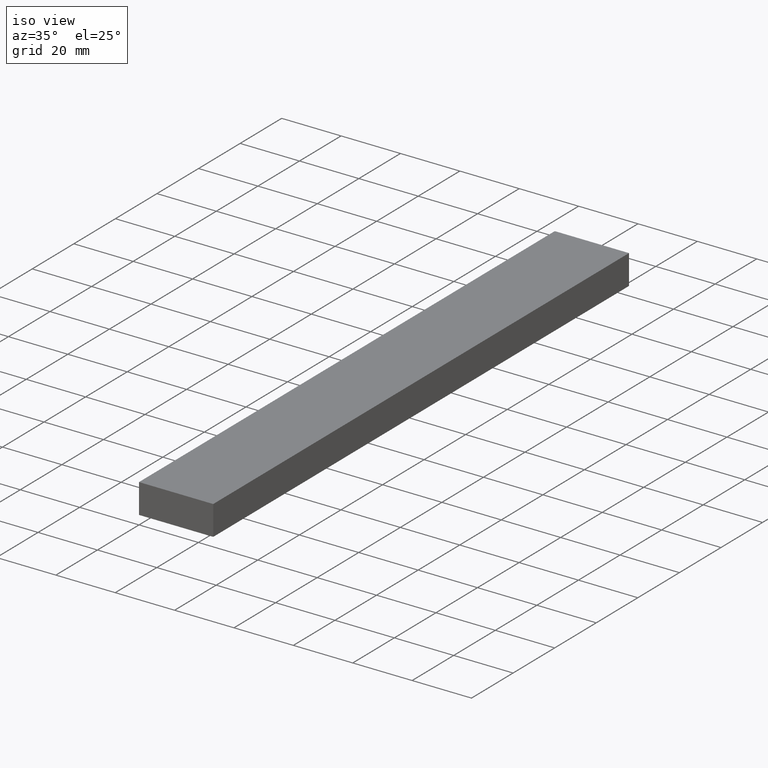
[diagram: clean part render]
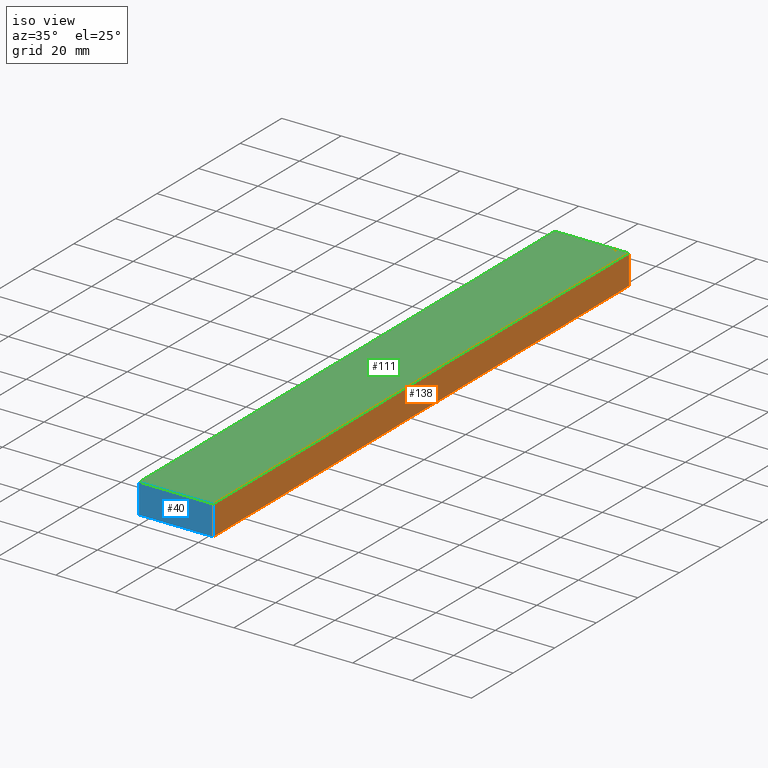
[diagram: same view with three faces highlighted in distinct colors, each labeled with its STEP entity id]
A machine part, iso view with three faces highlighted in distinct colors.
Their STEP definitions:

[orange] entity #138 — the highlighted planar face has unit normal (-1, 0, 0).
#4 = DIRECTION ( 'NONE',  ( 0.0000000000000000000, 0.0000000000000000000, -1.000000000000000000 ) ) ;
#6 = VERTEX_POINT ( 'NONE', #95 ) ;
#13 = EDGE_CURVE ( 'NONE', #76, #127, #45, .T. ) ;
#32 = CARTESIAN_POINT ( 'NONE',  ( 25.00000000000000000, 1000.000000000000000, 10.00000000000000000 ) ) ;
#34 = VECTOR ( 'NONE', #4, 1000.000000000000000 ) ;
#42 = VERTEX_POINT ( 'NONE', #156 ) ;
#45 = LINE ( 'NONE', #221, #229 ) ;
#48 = DIRECTION ( 'NONE',  ( 0.0000000000000000000, -1.000000000000000000, 0.0000000000000000000 ) ) ;
#68 = AXIS2_PLACEMENT_3D ( 'NONE', #227, #103, #230 ) ;
#76 = VERTEX_POINT ( 'NONE', #189 ) ;
#78 = EDGE_CURVE ( 'NONE', #127, #42, #171, .T. ) ;
#84 = EDGE_LOOP ( 'NONE', ( #117, #193, #198, #167 ) ) ;
#85 = CARTESIAN_POINT ( 'NONE',  ( 25.00000000000000000, 200.0000000000000000, 0.0000000000000000000 ) ) ;
#90 = EDGE_CURVE ( 'NONE', #6, #42, #107, .T. ) ;
#95 = CARTESIAN_POINT ( 'NONE',  ( 25.00000000000000000, 0.0000000000000000000, 10.00000000000000000 ) ) ;
#103 = DIRECTION ( 'NONE',  ( -1.000000000000000000, 0.0000000000000000000, 0.0000000000000000000 ) ) ;
#107 = LINE ( 'NONE', #142, #34 ) ;
#108 = FACE_OUTER_BOUND ( 'NONE', #84, .T. ) ;
#117 = ORIENTED_EDGE ( 'NONE', *, *, #90, .T. ) ;
#127 = VERTEX_POINT ( 'NONE', #85 ) ;
#138 = ADVANCED_FACE ( 'NONE', ( #108 ), #195, .F. ) ;
#140 = DIRECTION ( 'NONE',  ( 0.0000000000000000000, 0.0000000000000000000, -1.000000000000000000 ) ) ;
#142 = CARTESIAN_POINT ( 'NONE',  ( 25.00000000000000000, 0.0000000000000000000, 10.00000000000000000 ) ) ;
#143 = EDGE_CURVE ( 'NONE', #76, #6, #177, .T. ) ;
#150 = VECTOR ( 'NONE', #48, 1000.000000000000000 ) ;
#156 = CARTESIAN_POINT ( 'NONE',  ( 25.00000000000000000, 0.0000000000000000000, 0.0000000000000000000 ) ) ;
#158 = CARTESIAN_POINT ( 'NONE',  ( 25.00000000000000000, 1000.000000000000000, 0.0000000000000000000 ) ) ;
#162 = DIRECTION ( 'NONE',  ( 0.0000000000000000000, -1.000000000000000000, 0.0000000000000000000 ) ) ;
#167 = ORIENTED_EDGE ( 'NONE', *, *, #143, .T. ) ;
#171 = LINE ( 'NONE', #158, #150 ) ;
#177 = LINE ( 'NONE', #32, #220 ) ;
#189 = CARTESIAN_POINT ( 'NONE',  ( 25.00000000000000000, 200.0000000000000000, 10.00000000000000000 ) ) ;
#193 = ORIENTED_EDGE ( 'NONE', *, *, #78, .F. ) ;
#195 = PLANE ( 'NONE',  #68 ) ;
#198 = ORIENTED_EDGE ( 'NONE', *, *, #13, .F. ) ;
#220 = VECTOR ( 'NONE', #162, 1000.000000000000000 ) ;
#221 = CARTESIAN_POINT ( 'NONE',  ( 25.00000000000000000, 200.0000000000000000, 10.00000000000000000 ) ) ;
#227 = CARTESIAN_POINT ( 'NONE',  ( 25.00000000000000000, 1000.000000000000000, 10.00000000000000000 ) ) ;
#229 = VECTOR ( 'NONE', #140, 1000.000000000000000 ) ;
#230 = DIRECTION ( 'NONE',  ( 0.0000000000000000000, 0.0000000000000000000, 1.000000000000000000 ) ) ;

[blue] entity #40 — the highlighted planar face has unit normal (0, 1, 0).
#4 = DIRECTION ( 'NONE',  ( 0.0000000000000000000, 0.0000000000000000000, -1.000000000000000000 ) ) ;
#6 = VERTEX_POINT ( 'NONE', #95 ) ;
#12 = DIRECTION ( 'NONE',  ( -1.000000000000000000, 0.0000000000000000000, 0.0000000000000000000 ) ) ;
#21 = VERTEX_POINT ( 'NONE', #46 ) ;
#24 = VECTOR ( 'NONE', #206, 1000.000000000000000 ) ;
#34 = VECTOR ( 'NONE', #4, 1000.000000000000000 ) ;
#40 = ADVANCED_FACE ( 'NONE', ( #104 ), #80, .F. ) ;
#42 = VERTEX_POINT ( 'NONE', #156 ) ;
#46 = CARTESIAN_POINT ( 'NONE',  ( 0.0000000000000000000, 0.0000000000000000000, 10.00000000000000000 ) ) ;
#47 = DIRECTION ( 'NONE',  ( 1.000000000000000000, 0.0000000000000000000, 0.0000000000000000000 ) ) ;
#51 = CARTESIAN_POINT ( 'NONE',  ( 0.0000000000000000000, 0.0000000000000000000, 0.0000000000000000000 ) ) ;
#54 = EDGE_CURVE ( 'NONE', #21, #6, #65, .T. ) ;
#56 = AXIS2_PLACEMENT_3D ( 'NONE', #205, #141, #47 ) ;
#59 = ORIENTED_EDGE ( 'NONE', *, *, #155, .F. ) ;
#62 = CARTESIAN_POINT ( 'NONE',  ( 0.0000000000000000000, 0.0000000000000000000, 10.00000000000000000 ) ) ;
#65 = LINE ( 'NONE', #62, #24 ) ;
#69 = ORIENTED_EDGE ( 'NONE', *, *, #90, .F. ) ;
#80 = PLANE ( 'NONE',  #56 ) ;
#81 = LINE ( 'NONE', #145, #93 ) ;
#90 = EDGE_CURVE ( 'NONE', #6, #42, #107, .T. ) ;
#93 = VECTOR ( 'NONE', #213, 1000.000000000000000 ) ;
#95 = CARTESIAN_POINT ( 'NONE',  ( 25.00000000000000000, 0.0000000000000000000, 10.00000000000000000 ) ) ;
#104 = FACE_OUTER_BOUND ( 'NONE', #114, .T. ) ;
#107 = LINE ( 'NONE', #142, #34 ) ;
#114 = EDGE_LOOP ( 'NONE', ( #157, #134, #59, #69 ) ) ;
#134 = ORIENTED_EDGE ( 'NONE', *, *, #175, .F. ) ;
#135 = VECTOR ( 'NONE', #12, 1000.000000000000000 ) ;
#141 = DIRECTION ( 'NONE',  ( -0.0000000000000000000, 1.000000000000000000, 0.0000000000000000000 ) ) ;
#142 = CARTESIAN_POINT ( 'NONE',  ( 25.00000000000000000, 0.0000000000000000000, 10.00000000000000000 ) ) ;
#145 = CARTESIAN_POINT ( 'NONE',  ( 0.0000000000000000000, 0.0000000000000000000, 0.0000000000000000000 ) ) ;
#153 = VERTEX_POINT ( 'NONE', #51 ) ;
#155 = EDGE_CURVE ( 'NONE', #42, #153, #186, .T. ) ;
#156 = CARTESIAN_POINT ( 'NONE',  ( 25.00000000000000000, 0.0000000000000000000, 0.0000000000000000000 ) ) ;
#157 = ORIENTED_EDGE ( 'NONE', *, *, #54, .F. ) ;
#175 = EDGE_CURVE ( 'NONE', #153, #21, #81, .T. ) ;
#186 = LINE ( 'NONE', #232, #135 ) ;
#205 = CARTESIAN_POINT ( 'NONE',  ( 0.0000000000000000000, 0.0000000000000000000, 0.0000000000000000000 ) ) ;
#206 = DIRECTION ( 'NONE',  ( 1.000000000000000000, 0.0000000000000000000, 0.0000000000000000000 ) ) ;
#213 = DIRECTION ( 'NONE',  ( 0.0000000000000000000, 0.0000000000000000000, 1.000000000000000000 ) ) ;
#232 = CARTESIAN_POINT ( 'NONE',  ( 25.00000000000000000, 0.0000000000000000000, 0.0000000000000000000 ) ) ;

[green] entity #111 — the highlighted planar face has unit normal (0, 0, -1).
#1 = EDGE_LOOP ( 'NONE', ( #137, #204, #209, #128 ) ) ;
#3 = DIRECTION ( 'NONE',  ( 0.0000000000000000000, -1.000000000000000000, 0.0000000000000000000 ) ) ;
#6 = VERTEX_POINT ( 'NONE', #95 ) ;
#11 = LINE ( 'NONE', #60, #208 ) ;
#18 = LINE ( 'NONE', #116, #203 ) ;
#19 = FACE_OUTER_BOUND ( 'NONE', #1, .T. ) ;
#21 = VERTEX_POINT ( 'NONE', #46 ) ;
#24 = VECTOR ( 'NONE', #206, 1000.000000000000000 ) ;
#25 = DIRECTION ( 'NONE',  ( 1.000000000000000000, 0.0000000000000000000, 0.0000000000000000000 ) ) ;
#26 = PLANE ( 'NONE',  #44 ) ;
#27 = EDGE_CURVE ( 'NONE', #64, #76, #11, .T. ) ;
#32 = CARTESIAN_POINT ( 'NONE',  ( 25.00000000000000000, 1000.000000000000000, 10.00000000000000000 ) ) ;
#43 = EDGE_CURVE ( 'NONE', #64, #21, #18, .T. ) ;
#44 = AXIS2_PLACEMENT_3D ( 'NONE', #66, #211, #102 ) ;
#46 = CARTESIAN_POINT ( 'NONE',  ( 0.0000000000000000000, 0.0000000000000000000, 10.00000000000000000 ) ) ;
#54 = EDGE_CURVE ( 'NONE', #21, #6, #65, .T. ) ;
#60 = CARTESIAN_POINT ( 'NONE',  ( 0.0000000000000000000, 200.0000000000000000, 10.00000000000000000 ) ) ;
#62 = CARTESIAN_POINT ( 'NONE',  ( 0.0000000000000000000, 0.0000000000000000000, 10.00000000000000000 ) ) ;
#63 = CARTESIAN_POINT ( 'NONE',  ( 0.0000000000000000000, 200.0000000000000000, 10.00000000000000000 ) ) ;
#64 = VERTEX_POINT ( 'NONE', #63 ) ;
#65 = LINE ( 'NONE', #62, #24 ) ;
#66 = CARTESIAN_POINT ( 'NONE',  ( 0.0000000000000000000, 1000.000000000000000, 10.00000000000000000 ) ) ;
#76 = VERTEX_POINT ( 'NONE', #189 ) ;
#95 = CARTESIAN_POINT ( 'NONE',  ( 25.00000000000000000, 0.0000000000000000000, 10.00000000000000000 ) ) ;
#102 = DIRECTION ( 'NONE',  ( -1.000000000000000000, 0.0000000000000000000, 0.0000000000000000000 ) ) ;
#111 = ADVANCED_FACE ( 'NONE', ( #19 ), #26, .F. ) ;
#116 = CARTESIAN_POINT ( 'NONE',  ( 0.0000000000000000000, 1000.000000000000000, 10.00000000000000000 ) ) ;
#128 = ORIENTED_EDGE ( 'NONE', *, *, #43, .T. ) ;
#137 = ORIENTED_EDGE ( 'NONE', *, *, #54, .T. ) ;
#143 = EDGE_CURVE ( 'NONE', #76, #6, #177, .T. ) ;
#162 = DIRECTION ( 'NONE',  ( 0.0000000000000000000, -1.000000000000000000, 0.0000000000000000000 ) ) ;
#177 = LINE ( 'NONE', #32, #220 ) ;
#189 = CARTESIAN_POINT ( 'NONE',  ( 25.00000000000000000, 200.0000000000000000, 10.00000000000000000 ) ) ;
#203 = VECTOR ( 'NONE', #3, 1000.000000000000000 ) ;
#204 = ORIENTED_EDGE ( 'NONE', *, *, #143, .F. ) ;
#206 = DIRECTION ( 'NONE',  ( 1.000000000000000000, 0.0000000000000000000, 0.0000000000000000000 ) ) ;
#208 = VECTOR ( 'NONE', #25, 1000.000000000000000 ) ;
#209 = ORIENTED_EDGE ( 'NONE', *, *, #27, .F. ) ;
#211 = DIRECTION ( 'NONE',  ( 0.0000000000000000000, 0.0000000000000000000, -1.000000000000000000 ) ) ;
#220 = VECTOR ( 'NONE', #162, 1000.000000000000000 ) ;